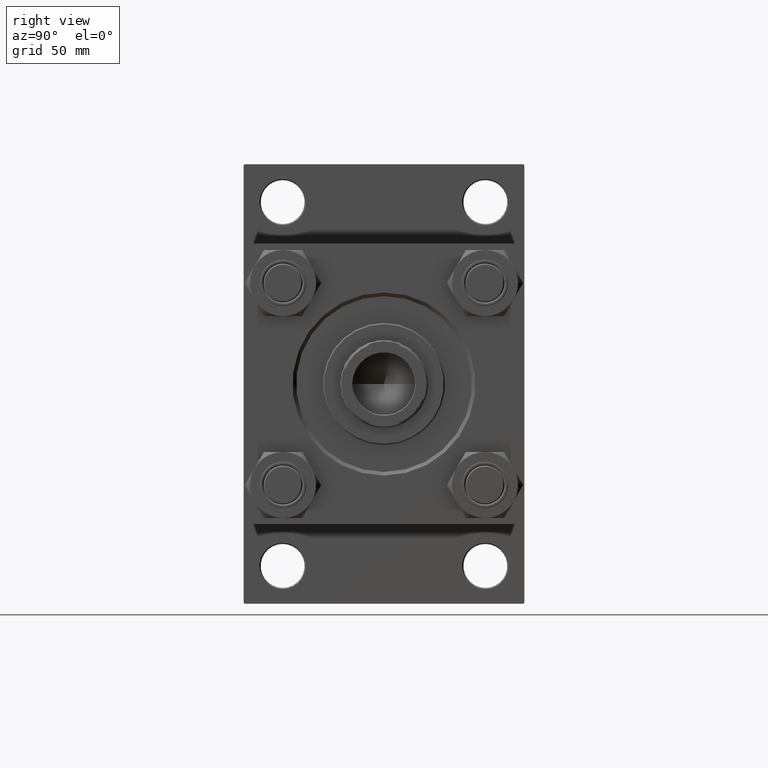
[diagram: clean part render]
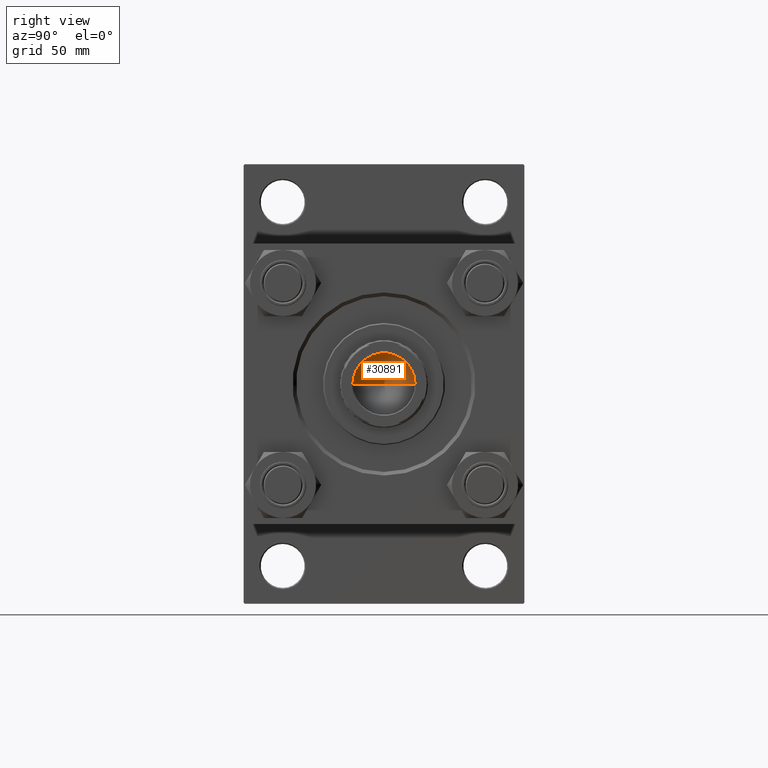
[diagram: same view with one face highlighted and labeled with its STEP entity id]
A machine part, right view. The second image highlights one B-rep face of the part: STEP entity #30891.
In plain terms, the highlighted conical surface has half-angle 59 deg.
Its self-contained STEP definition (entity closure, byte-faithful):
#365 = CARTESIAN_POINT ( 'NONE',  ( 0.000000000000000000, 0.000000000000000000, 121.0000000000000142 ) ) ;
#819 = DIRECTION ( 'NONE',  ( -0.8571673007021117785, 1.049727191138617956E-16, 0.5150380749100550437 ) ) ;
#1785 = VECTOR ( 'NONE', #20601, 1000.000000000000000 ) ;
#2158 = VECTOR ( 'NONE', #819, 1000.000000000000000 ) ;
#4300 = LINE ( 'NONE', #36436, #1785 ) ;
#4541 = CIRCLE ( 'NONE', #45313, 12.74999999999998934 ) ;
#4667 = DIRECTION ( 'NONE',  ( -0.000000000000000000, -0.000000000000000000, 1.000000000000000000 ) ) ;
#6861 = CONICAL_SURFACE ( 'NONE', #36170, 12.74999999999998934, 1.029744258676653423 ) ;
#9012 = ORIENTED_EDGE ( 'NONE', *, *, #25629, .F. ) ;
#12064 = CARTESIAN_POINT ( 'NONE',  ( 0.000000000000000000, 0.000000000000000000, 121.0000000000000142 ) ) ;
#15419 = DIRECTION ( 'NONE',  ( 1.000000000000000000, 0.000000000000000000, 0.000000000000000000 ) ) ;
#16133 = FACE_OUTER_BOUND ( 'NONE', #22821, .T. ) ;
#19627 = ORIENTED_EDGE ( 'NONE', *, *, #39053, .T. ) ;
#20041 = ORIENTED_EDGE ( 'NONE', *, *, #40693, .T. ) ;
#20601 = DIRECTION ( 'NONE',  ( 0.8571673007021117785, 0.000000000000000000, 0.5150380749100550437 ) ) ;
#22506 = VERTEX_POINT ( 'NONE', #40233 ) ;
#22821 = EDGE_LOOP ( 'NONE', ( #9012, #20041, #19627 ) ) ;
#25629 = EDGE_CURVE ( 'NONE', #22506, #34075, #4300, .T. ) ;
#30060 = CARTESIAN_POINT ( 'NONE',  ( 12.74999999999998934, 0.000000000000000000, 121.0000000000000142 ) ) ;
#30891 = ADVANCED_FACE ( 'NONE', ( #16133 ), #6861, .F. ) ;
#31764 = DIRECTION ( 'NONE',  ( -0.000000000000000000, -0.000000000000000000, 1.000000000000000000 ) ) ;
#31945 = CARTESIAN_POINT ( 'NONE',  ( -12.74999999999998934, 1.561424668912873928E-15, 121.0000000000000142 ) ) ;
#34075 = VERTEX_POINT ( 'NONE', #30060 ) ;
#36170 = AXIS2_PLACEMENT_3D ( 'NONE', #12064, #4667, #47025 ) ;
#36436 = CARTESIAN_POINT ( 'NONE',  ( 12.74999999999998934, 0.000000000000000000, 121.0000000000000142 ) ) ;
#39053 = EDGE_CURVE ( 'NONE', #42419, #34075, #4541, .T. ) ;
#40233 = CARTESIAN_POINT ( 'NONE',  ( -1.410643066818227497E-14, 0.000000000000000000, 113.3390271073986071 ) ) ;
#40693 = EDGE_CURVE ( 'NONE', #22506, #42419, #48000, .T. ) ;
#42419 = VERTEX_POINT ( 'NONE', #48812 ) ;
#45313 = AXIS2_PLACEMENT_3D ( 'NONE', #365, #31764, #15419 ) ;
#47025 = DIRECTION ( 'NONE',  ( 1.000000000000000000, 0.000000000000000000, 0.000000000000000000 ) ) ;
#48000 = LINE ( 'NONE', #31945, #2158 ) ;
#48812 = CARTESIAN_POINT ( 'NONE',  ( -12.74999999999998934, 1.561424668912873928E-15, 121.0000000000000142 ) ) ;